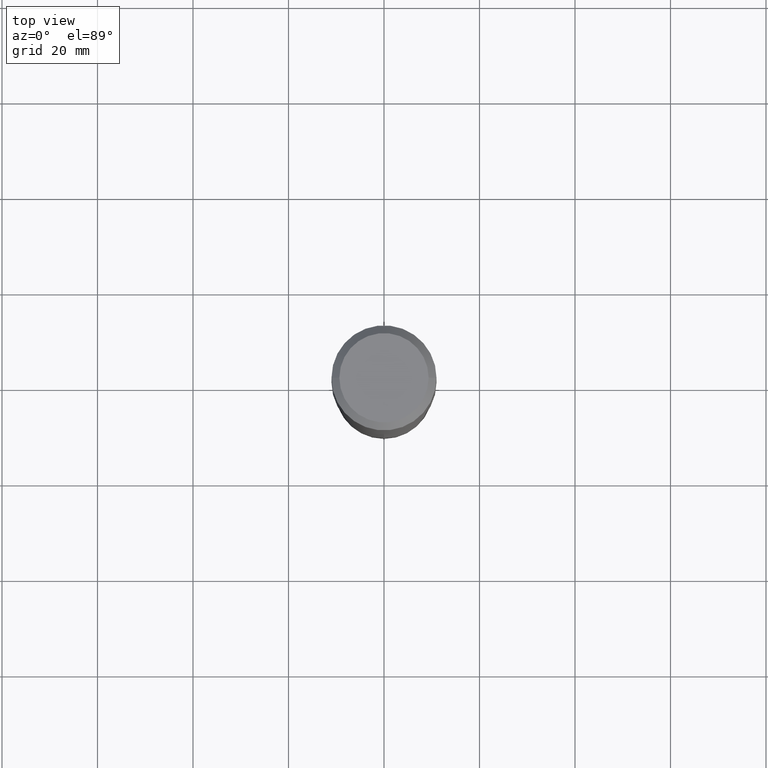
[diagram: clean part render]
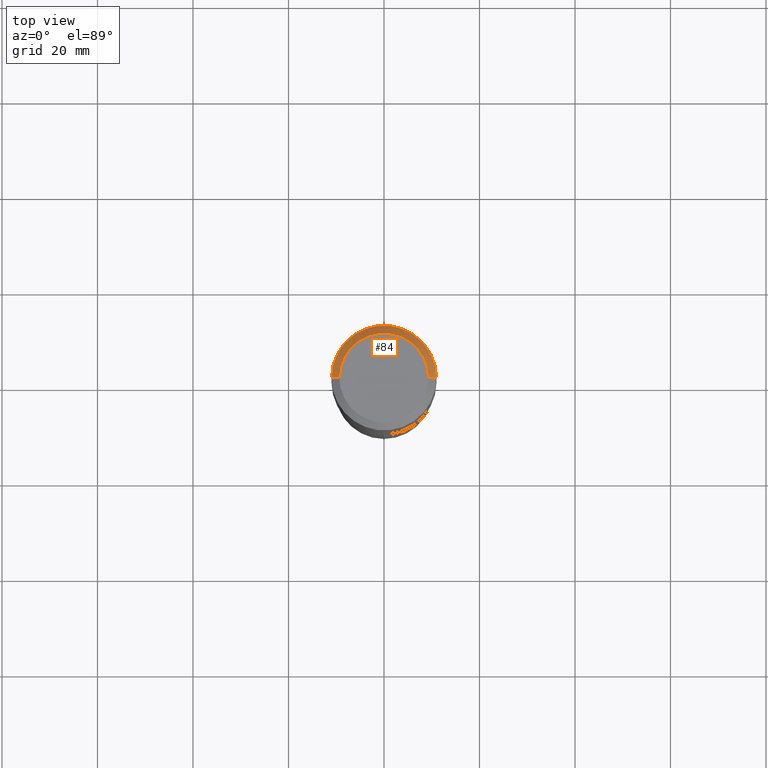
[diagram: same view with one face highlighted and labeled with its STEP entity id]
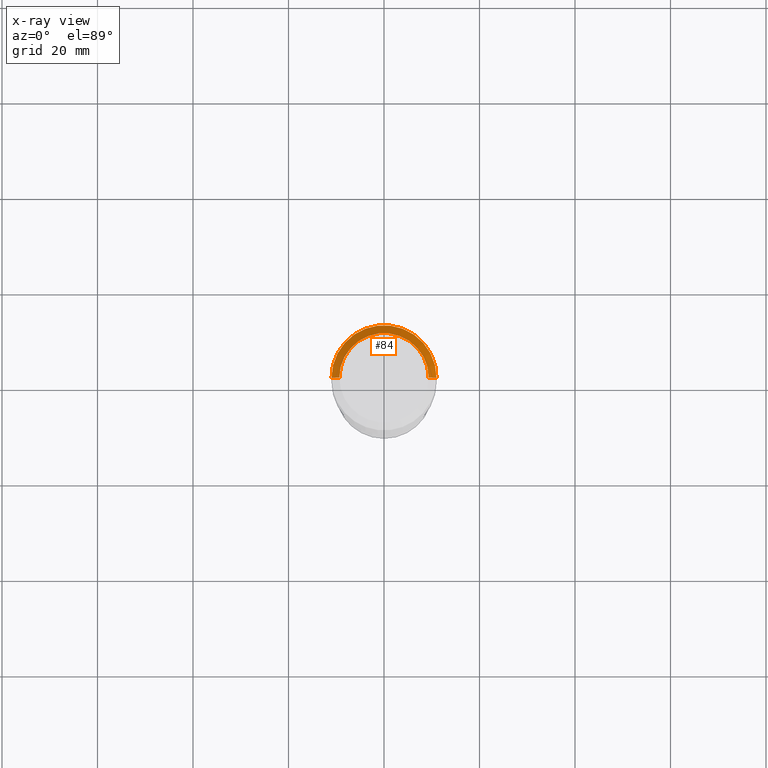
[diagram: x-ray of the same camera — body ghosted, the highlighted face saturated]
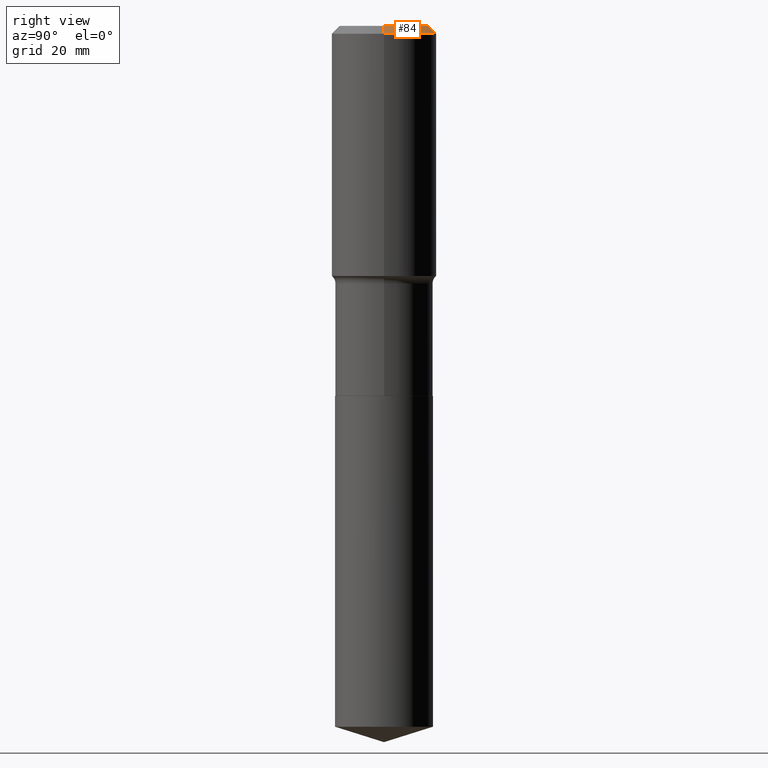
[diagram: same view with one face highlighted and labeled with its STEP entity id]
A machine part, top view. The second image highlights one B-rep face of the part: STEP entity #84.
The next image is the same camera in x-ray: the body ghosted, the highlighted face saturated — about 0% of this face is hidden behind the body in this view.
A second angle (right view) of the same face is appended — the face is thin or edge-on in the first view.
In plain terms, the highlighted conical surface has half-angle 45 deg.
Its self-contained STEP definition (entity closure, byte-faithful):
#15 = CARTESIAN_POINT ( 'NONE',  ( 0.3680924999999999336, -2.861517208123791872E-15, 3.893152174491335652E-17 ) ) ;
#19 = DIRECTION ( 'NONE',  ( 2.445468806185136597E-29, -3.491481338843145583E-15, -1.000000000000000000 ) ) ;
#28 = DIRECTION ( 'NONE',  ( 0.7071067811865450192, -7.319954787623246579E-15, -0.7071067811865500152 ) ) ;
#36 = VECTOR ( 'NONE', #246, 39.37007874015748143 ) ;
#50 = CARTESIAN_POINT ( 'NONE',  ( -0.4330499999999999905, -6.359571781029132743E-16, -0.06495750000000043156 ) ) ;
#62 = CARTESIAN_POINT ( 'NONE',  ( 0.4330499999999999905, -3.197736557002866957E-15, -0.06495750000000043156 ) ) ;
#71 = ORIENTED_EDGE ( 'NONE', *, *, #141, .F. ) ;
#84 = ADVANCED_FACE ( 'NONE', ( #166 ), #126, .T. ) ;
#90 = CARTESIAN_POINT ( 'NONE',  ( 1.588515399777720472E-30, -2.267978990679051181E-16, -0.06495750000000043156 ) ) ;
#93 = VERTEX_POINT ( 'NONE', #97 ) ;
#97 = CARTESIAN_POINT ( 'NONE',  ( -0.3680924999999999336, 2.683775138970182009E-15, 3.893152174487599040E-17 ) ) ;
#99 = CARTESIAN_POINT ( 'NONE',  ( -9.520582200445749913E-46, 1.359286816650647833E-31, 3.893152174489436223E-17 ) ) ;
#126 = CONICAL_SURFACE ( 'NONE', #201, 0.4330499999999999905, 0.7853981633974447263 ) ;
#131 = LINE ( 'NONE', #328, #36 ) ;
#141 = EDGE_CURVE ( 'NONE', #414, #93, #258, .T. ) ;
#166 = FACE_OUTER_BOUND ( 'NONE', #473, .T. ) ;
#185 = CARTESIAN_POINT ( 'NONE',  ( 1.588515399777720472E-30, -2.267978990679051181E-16, -0.06495750000000043156 ) ) ;
#201 = AXIS2_PLACEMENT_3D ( 'NONE', #90, #19, #256 ) ;
#208 = ORIENTED_EDGE ( 'NONE', *, *, #426, .F. ) ;
#223 = DIRECTION ( 'NONE',  ( -2.445468806185136597E-29, 3.491481338843145583E-15, 1.000000000000000000 ) ) ;
#245 = AXIS2_PLACEMENT_3D ( 'NONE', #99, #264, #409 ) ;
#246 = DIRECTION ( 'NONE',  ( -0.7071067811865450192, 2.468850131082230634E-15, -0.7071067811865500152 ) ) ;
#247 = CIRCLE ( 'NONE', #376, 0.4330499999999999905 ) ;
#256 = DIRECTION ( 'NONE',  ( -1.000000000000000000, 6.982962677686266711E-15, 0.000000000000000000 ) ) ;
#258 = CIRCLE ( 'NONE', #245, 0.3680924999999999336 ) ;
#264 = DIRECTION ( 'NONE',  ( -2.445468806185136597E-29, 3.491481338843145583E-15, 1.000000000000000000 ) ) ;
#289 = CARTESIAN_POINT ( 'NONE',  ( 0.4330499999999999905, -3.250769886639943005E-15, -0.06495750000000043156 ) ) ;
#328 = CARTESIAN_POINT ( 'NONE',  ( -0.4330499999999999905, 2.797174088504132473E-15, -0.06495750000000043156 ) ) ;
#340 = DIRECTION ( 'NONE',  ( 1.000000000000000000, -6.982962677686266711E-15, 0.000000000000000000 ) ) ;
#345 = VECTOR ( 'NONE', #28, 39.37007874015748143 ) ;
#349 = ORIENTED_EDGE ( 'NONE', *, *, #485, .T. ) ;
#351 = VERTEX_POINT ( 'NONE', #289 ) ;
#376 = AXIS2_PLACEMENT_3D ( 'NONE', #185, #223, #340 ) ;
#392 = VERTEX_POINT ( 'NONE', #50 ) ;
#409 = DIRECTION ( 'NONE',  ( 1.000000000000000000, -6.982962677686267499E-15, 4.875824421662870534E-29 ) ) ;
#414 = VERTEX_POINT ( 'NONE', #15 ) ;
#426 = EDGE_CURVE ( 'NONE', #93, #392, #131, .T. ) ;
#449 = LINE ( 'NONE', #62, #345 ) ;
#473 = EDGE_LOOP ( 'NONE', ( #71, #480, #349, #208 ) ) ;
#480 = ORIENTED_EDGE ( 'NONE', *, *, #491, .T. ) ;
#485 = EDGE_CURVE ( 'NONE', #351, #392, #247, .T. ) ;
#491 = EDGE_CURVE ( 'NONE', #414, #351, #449, .T. ) ;